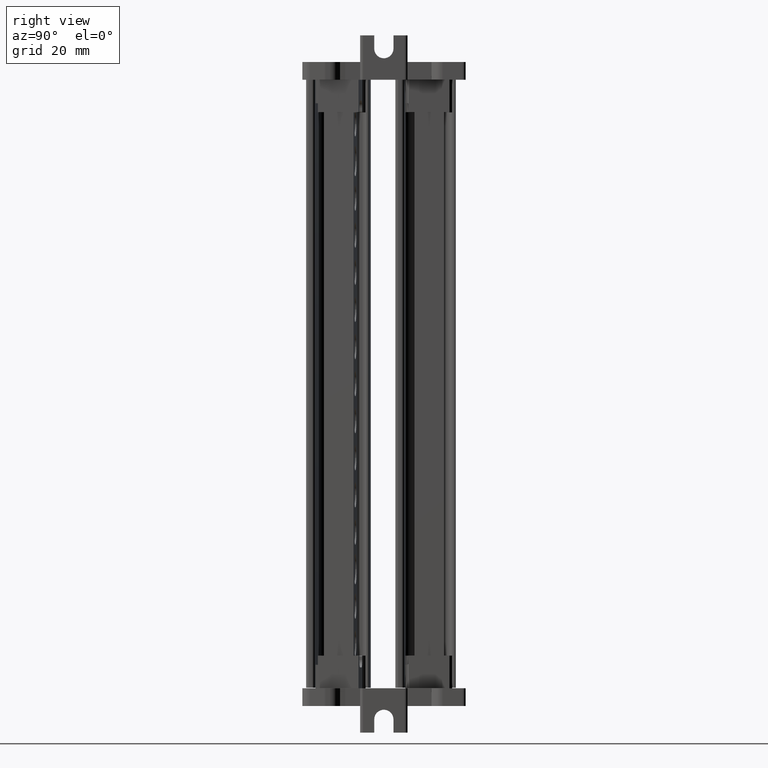
[diagram: clean part render]
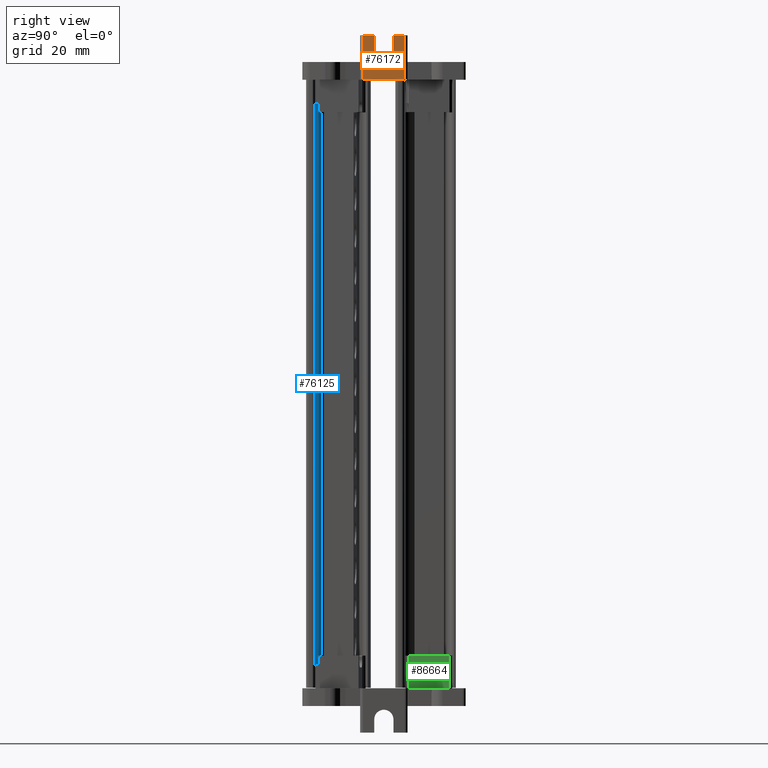
[diagram: same view with three faces highlighted in distinct colors, each labeled with its STEP entity id]
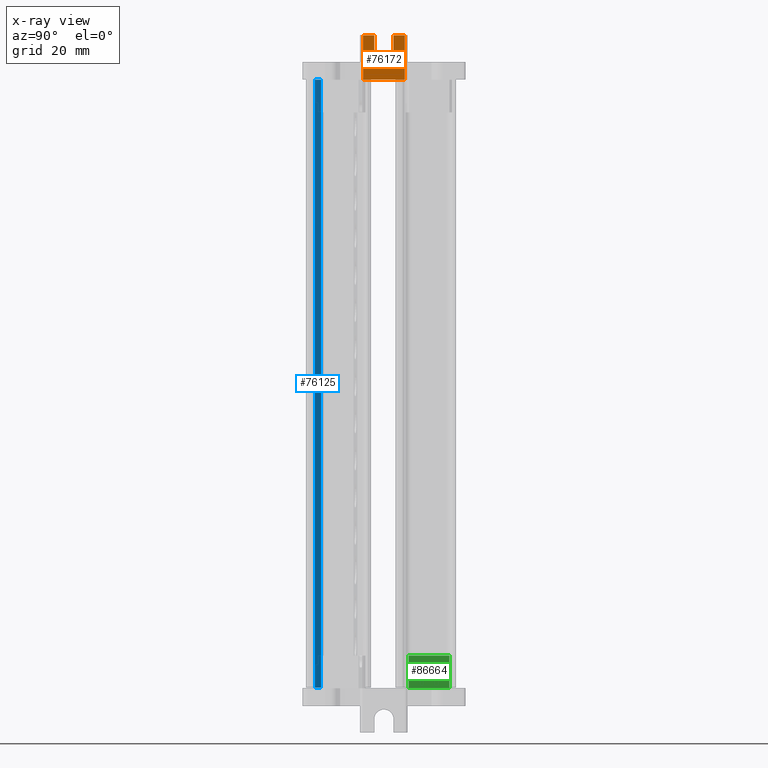
[diagram: x-ray of the same camera — body ghosted, the three highlighted faces saturated]
A machine part, right view with three faces highlighted in distinct colors.
The next image is the same camera in x-ray (body ghosted, the three faces saturated) — at least one of them is partly hidden behind the body in this view.
Their STEP definitions:

[orange] entity #76172 — the highlighted planar face has unit normal (-1, -0, 0).
#28673 = DIRECTION ( 'NONE',  ( 1.000000000000000000, 3.441691376337985300E-015, 0.0000000000000000000 ) ) ;
#28675 = CARTESIAN_POINT ( 'NONE',  ( 1916.332438672975500, 783.8773129364929000, 221.5014730974894200 ) ) ;
#28707 = DIRECTION ( 'NONE',  ( 0.0000000000000000000, -1.000000000000000000, 0.0000000000000000000 ) ) ;
#33661 = EDGE_CURVE ( 'NONE', #80618, #80579, #55450, .T. ) ;
#33675 = EDGE_CURVE ( 'NONE', #80597, #80585, #55399, .T. ) ;
#33685 = EDGE_CURVE ( 'NONE', #80524, #80618, #54448, .T. ) ;
#33763 = EDGE_CURVE ( 'NONE', #80576, #80597, #54670, .T. ) ;
#33765 = EDGE_CURVE ( 'NONE', #80585, #80560, #54795, .T. ) ;
#33810 = EDGE_CURVE ( 'NONE', #80579, #80525, #54912, .T. ) ;
#33879 = EDGE_CURVE ( 'NONE', #80560, #80524, #91017, .T. ) ;
#34477 = EDGE_CURVE ( 'NONE', #80525, #80576, #52796, .T. ) ;
#41433 = CARTESIAN_POINT ( 'NONE',  ( 1916.332438672975500, 790.8647591344192700, 211.0203038005998100 ) ) ;
#41463 = CARTESIAN_POINT ( 'NONE',  ( 1916.332438672975500, 787.1214843855300400, 221.5014730974894200 ) ) ;
#41545 = CARTESIAN_POINT ( 'NONE',  ( 1916.332438672975500, 776.8898667385669800, 225.9934027961556600 ) ) ;
#41558 = CARTESIAN_POINT ( 'NONE',  ( 1916.332438672975300, 780.6331414874558700, 225.9934027961556600 ) ) ;
#41593 = CARTESIAN_POINT ( 'NONE',  ( 1916.332438672975500, 790.8647591344192700, 225.9934027961556600 ) ) ;
#41618 = CARTESIAN_POINT ( 'NONE',  ( 1916.332438672975500, 776.8898667385669800, 211.0203038005998100 ) ) ;
#41621 = CARTESIAN_POINT ( 'NONE',  ( 1916.332438672975500, 780.6331414874558700, 221.5014730974894200 ) ) ;
#41649 = CARTESIAN_POINT ( 'NONE',  ( 1916.332438672975300, 787.1214843855301500, 225.9934027961556600 ) ) ;
#47578 = EDGE_LOOP ( 'NONE', ( #60446, #60426, #60476, #60256, #60328, #60430, #60262, #60250 ) ) ;
#52792 = CARTESIAN_POINT ( 'NONE',  ( 1916.332438672975500, 799.9770333218530100, 211.0203038005998100 ) ) ;
#52796 = LINE ( 'NONE', #52792, #89612 ) ;
#52867 = DIRECTION ( 'NONE',  ( -0.0000000000000000000, -1.000000000000000000, -0.0000000000000000000 ) ) ;
#54433 = DIRECTION ( 'NONE',  ( 0.0000000000000000000, 0.0000000000000000000, 1.000000000000000000 ) ) ;
#54448 = LINE ( 'NONE', #54490, #90974 ) ;
#54490 = CARTESIAN_POINT ( 'NONE',  ( 1916.332438672975500, 787.1214843855300400, 211.0203038005998100 ) ) ;
#54670 = LINE ( 'NONE', #54680, #91005 ) ;
#54680 = CARTESIAN_POINT ( 'NONE',  ( 1916.332438672975500, 776.8898667385669800, 211.0203038005998100 ) ) ;
#54684 = DIRECTION ( 'NONE',  ( 0.0000000000000000000, 0.0000000000000000000, 1.000000000000000000 ) ) ;
#54742 = DIRECTION ( 'NONE',  ( -0.0000000000000000000, -0.0000000000000000000, -1.000000000000000000 ) ) ;
#54753 = CARTESIAN_POINT ( 'NONE',  ( 1916.332438672975500, 780.6331414874558700, 211.0203038005998100 ) ) ;
#54795 = LINE ( 'NONE', #54753, #91003 ) ;
#54813 = DIRECTION ( 'NONE',  ( -0.0000000000000000000, -0.0000000000000000000, -1.000000000000000000 ) ) ;
#54912 = LINE ( 'NONE', #54914, #91023 ) ;
#54914 = CARTESIAN_POINT ( 'NONE',  ( 1916.332438672975500, 790.8647591344192700, 211.0203038005998100 ) ) ;
#55399 = LINE ( 'NONE', #55414, #90973 ) ;
#55403 = DIRECTION ( 'NONE',  ( -3.441691376337985300E-015, 1.000000000000000000, -0.0000000000000000000 ) ) ;
#55414 = CARTESIAN_POINT ( 'NONE',  ( 1916.332438672975500, 791.3599581919510200, 225.9934027961556600 ) ) ;
#55434 = DIRECTION ( 'NONE',  ( -3.441691376337985300E-015, 1.000000000000000000, -0.0000000000000000000 ) ) ;
#55450 = LINE ( 'NONE', #55479, #90972 ) ;
#55479 = CARTESIAN_POINT ( 'NONE',  ( 1916.332438672975500, 791.3599581919510200, 225.9934027961556600 ) ) ;
#59375 = CARTESIAN_POINT ( 'NONE',  ( 1916.332438672975500, 791.3599581919510200, 211.0203038005998100 ) ) ;
#59396 = DIRECTION ( 'NONE',  ( -1.000000000000000000, -3.441691376337985300E-015, 0.0000000000000000000 ) ) ;
#59399 = DIRECTION ( 'NONE',  ( 3.441691376337985300E-015, -1.000000000000000000, 0.0000000000000000000 ) ) ;
#59442 = PLANE ( 'NONE',  #65519 ) ;
#59447 = FACE_OUTER_BOUND ( 'NONE', #47578, .T. ) ;
#60250 = ORIENTED_EDGE ( 'NONE', *, *, #33661, .F. ) ;
#60256 = ORIENTED_EDGE ( 'NONE', *, *, #33675, .F. ) ;
#60262 = ORIENTED_EDGE ( 'NONE', *, *, #33810, .F. ) ;
#60328 = ORIENTED_EDGE ( 'NONE', *, *, #33763, .F. ) ;
#60426 = ORIENTED_EDGE ( 'NONE', *, *, #33879, .F. ) ;
#60430 = ORIENTED_EDGE ( 'NONE', *, *, #34477, .F. ) ;
#60446 = ORIENTED_EDGE ( 'NONE', *, *, #33685, .F. ) ;
#60476 = ORIENTED_EDGE ( 'NONE', *, *, #33765, .F. ) ;
#65519 = AXIS2_PLACEMENT_3D ( 'NONE', #59375, #59396, #59399 ) ;
#76172 = ADVANCED_FACE ( 'NONE', ( #59447 ), #59442, .F. ) ;
#80524 = VERTEX_POINT ( 'NONE', #41463 ) ;
#80525 = VERTEX_POINT ( 'NONE', #41433 ) ;
#80560 = VERTEX_POINT ( 'NONE', #41621 ) ;
#80576 = VERTEX_POINT ( 'NONE', #41618 ) ;
#80579 = VERTEX_POINT ( 'NONE', #41593 ) ;
#80585 = VERTEX_POINT ( 'NONE', #41558 ) ;
#80597 = VERTEX_POINT ( 'NONE', #41545 ) ;
#80618 = VERTEX_POINT ( 'NONE', #41649 ) ;
#89612 = VECTOR ( 'NONE', #52867, 1000.000000000000000 ) ;
#90972 = VECTOR ( 'NONE', #55403, 1000.000000000000000 ) ;
#90973 = VECTOR ( 'NONE', #55434, 1000.000000000000000 ) ;
#90974 = VECTOR ( 'NONE', #54433, 1000.000000000000000 ) ;
#91003 = VECTOR ( 'NONE', #54742, 1000.000000000000000 ) ;
#91005 = VECTOR ( 'NONE', #54684, 1000.000000000000000 ) ;
#91017 = CIRCLE ( 'NONE', #91074, 3.244171449037103200 ) ;
#91023 = VECTOR ( 'NONE', #54813, 1000.000000000000000 ) ;
#91074 = AXIS2_PLACEMENT_3D ( 'NONE', #28675, #28673, #28707 ) ;

[blue] entity #76125 — the highlighted planar face has unit normal (-0.1045, -0.9945, -0).
#1001 = DIRECTION ( 'NONE',  ( 1.515544296466684300E-010, 1.441952549265793800E-009, -1.000000000000000000 ) ) ;
#1025 = CARTESIAN_POINT ( 'NONE',  ( 1882.652508032793800, 762.7547819161757200, 106.6560282061103900 ) ) ;
#1038 = LINE ( 'NONE', #1025, #83029 ) ;
#1254 = CARTESIAN_POINT ( 'NONE',  ( 1882.652508032349000, 762.7547819162224400, 106.6560282061103900 ) ) ;
#1257 = CARTESIAN_POINT ( 'NONE',  ( 1882.652508032942000, 762.7547819161601400, 106.6560282061103900 ) ) ;
#1275 = DIRECTION ( 'NONE',  ( 1.515544296466684300E-010, 1.441952549265793800E-009, -1.000000000000000000 ) ) ;
#1284 = LINE ( 'NONE', #1257, #83041 ) ;
#1286 = DIRECTION ( 'NONE',  ( 1.515544296466684300E-010, 1.441952549265793800E-009, -1.000000000000000000 ) ) ;
#1294 = LINE ( 'NONE', #1254, #83002 ) ;
#1452 = LINE ( 'NONE', #1465, #83079 ) ;
#1457 = DIRECTION ( 'NONE',  ( 0.9945219592039813400, -0.1045278559096772300, 0.0000000000000000000 ) ) ;
#1465 = CARTESIAN_POINT ( 'NONE',  ( 1890.967631001513800, 761.8808325560750100, 6.170753984970758700 ) ) ;
#2531 = DIRECTION ( 'NONE',  ( 1.515544296466684300E-010, 1.441952549265793800E-009, -1.000000000000000000 ) ) ;
#2650 = LINE ( 'NONE', #2847, #83136 ) ;
#2847 = CARTESIAN_POINT ( 'NONE',  ( 1882.652508032187800, 762.7547819162394900, 106.6560282061103900 ) ) ;
#26360 = DIRECTION ( 'NONE',  ( 1.515544296466684300E-010, 1.441952549265793800E-009, -1.000000000000000000 ) ) ;
#26422 = LINE ( 'NONE', #26426, #83126 ) ;
#26426 = CARTESIAN_POINT ( 'NONE',  ( 1882.652508031346300, 762.7547819163279400, 106.6560282061103900 ) ) ;
#26680 = DIRECTION ( 'NONE',  ( -1.515544296466684300E-010, -1.441952549265793800E-009, 1.000000000000000000 ) ) ;
#26728 = CARTESIAN_POINT ( 'NONE',  ( 1902.720778242178100, 760.6455341138628200, 106.6560282061103900 ) ) ;
#26740 = LINE ( 'NONE', #26728, #83209 ) ;
#34311 = EDGE_CURVE ( 'NONE', #81516, #80606, #46263, .T. ) ;
#34383 = EDGE_CURVE ( 'NONE', #81601, #80606, #46399, .T. ) ;
#41568 = CARTESIAN_POINT ( 'NONE',  ( 1882.652508018487900, 762.7547817655289500, 211.0203038005997800 ) ) ;
#42555 = CARTESIAN_POINT ( 'NONE',  ( 1882.652508033221000, 762.7547819216656500, 91.27816808840262300 ) ) ;
#42591 = CARTESIAN_POINT ( 'NONE',  ( 1882.652508033103200, 762.7547819230059100, 88.54720315093300100 ) ) ;
#42609 = CARTESIAN_POINT ( 'NONE',  ( 1882.652508035118000, 762.7547819470962600, 38.56707596507672500 ) ) ;
#42635 = CARTESIAN_POINT ( 'NONE',  ( 1902.720778228944300, 760.6455339631031600, 211.0203038005998300 ) ) ;
#42636 = CARTESIAN_POINT ( 'NONE',  ( 1882.652508042595900, 762.7547820104299500, 41.29804090188641700 ) ) ;
#42712 = CARTESIAN_POINT ( 'NONE',  ( 1882.652508032045900, 762.7547819133399100, 108.6552333024460400 ) ) ;
#42724 = CARTESIAN_POINT ( 'NONE',  ( 1902.720778257406900, 760.6455342587579500, 6.170753986674961700 ) ) ;
#42730 = CARTESIAN_POINT ( 'NONE',  ( 1882.652508047756600, 762.7547820610986900, 6.170753984970786200 ) ) ;
#46263 = LINE ( 'NONE', #46264, #89596 ) ;
#46264 = CARTESIAN_POINT ( 'NONE',  ( 1902.720778228944300, 760.6455339631031600, 211.0203038005998100 ) ) ;
#46266 = DIRECTION ( 'NONE',  ( -0.9945219592039812300, 0.1045278559096781800, 0.0000000000000000000 ) ) ;
#46388 = DIRECTION ( 'NONE',  ( -1.263344702348296700E-010, -1.444603258241151800E-009, 1.000000000000000000 ) ) ;
#46399 = LINE ( 'NONE', #46431, #89548 ) ;
#46431 = CARTESIAN_POINT ( 'NONE',  ( 1882.652508032298600, 762.7547819162280100, 106.6560282063225700 ) ) ;
#47560 = EDGE_LOOP ( 'NONE', ( #56769, #56881, #56856, #56864, #56938, #56833, #56914, #56868, #56804 ) ) ;
#56769 = ORIENTED_EDGE ( 'NONE', *, *, #78066, .F. ) ;
#56804 = ORIENTED_EDGE ( 'NONE', *, *, #34311, .F. ) ;
#56833 = ORIENTED_EDGE ( 'NONE', *, *, #77805, .F. ) ;
#56856 = ORIENTED_EDGE ( 'NONE', *, *, #78007, .F. ) ;
#56864 = ORIENTED_EDGE ( 'NONE', *, *, #77879, .F. ) ;
#56868 = ORIENTED_EDGE ( 'NONE', *, *, #34383, .T. ) ;
#56881 = ORIENTED_EDGE ( 'NONE', *, *, #77962, .F. ) ;
#56914 = ORIENTED_EDGE ( 'NONE', *, *, #77876, .F. ) ;
#56938 = ORIENTED_EDGE ( 'NONE', *, *, #77982, .F. ) ;
#62420 = DIRECTION ( 'NONE',  ( -0.1045278559096772400, -0.9945219592039814500, -1.449895133959573500E-009 ) ) ;
#62436 = FACE_OUTER_BOUND ( 'NONE', #47560, .T. ) ;
#62448 = CARTESIAN_POINT ( 'NONE',  ( 1890.967630986284800, 761.8808324111799900, 106.6560282061103900 ) ) ;
#62456 = PLANE ( 'NONE',  #65426 ) ;
#62457 = DIRECTION ( 'NONE',  ( 0.9945219592039813400, -0.1045278559096772300, 0.0000000000000000000 ) ) ;
#65426 = AXIS2_PLACEMENT_3D ( 'NONE', #62448, #62420, #62457 ) ;
#76125 = ADVANCED_FACE ( 'NONE', ( #62436 ), #62456, .F. ) ;
#77805 = EDGE_CURVE ( 'NONE', #81450, #81464, #1038, .T. ) ;
#77876 = EDGE_CURVE ( 'NONE', #81601, #81450, #1294, .T. ) ;
#77879 = EDGE_CURVE ( 'NONE', #81507, #81473, #1284, .T. ) ;
#77962 = EDGE_CURVE ( 'NONE', #81586, #81566, #1452, .T. ) ;
#77982 = EDGE_CURVE ( 'NONE', #81464, #81507, #2650, .T. ) ;
#78007 = EDGE_CURVE ( 'NONE', #81473, #81586, #26422, .T. ) ;
#78066 = EDGE_CURVE ( 'NONE', #81566, #81516, #26740, .T. ) ;
#80606 = VERTEX_POINT ( 'NONE', #41568 ) ;
#81450 = VERTEX_POINT ( 'NONE', #42555 ) ;
#81464 = VERTEX_POINT ( 'NONE', #42591 ) ;
#81473 = VERTEX_POINT ( 'NONE', #42609 ) ;
#81507 = VERTEX_POINT ( 'NONE', #42636 ) ;
#81516 = VERTEX_POINT ( 'NONE', #42635 ) ;
#81566 = VERTEX_POINT ( 'NONE', #42724 ) ;
#81586 = VERTEX_POINT ( 'NONE', #42730 ) ;
#81601 = VERTEX_POINT ( 'NONE', #42712 ) ;
#83002 = VECTOR ( 'NONE', #1275, 1000.000000000000000 ) ;
#83029 = VECTOR ( 'NONE', #1001, 1000.000000000000000 ) ;
#83041 = VECTOR ( 'NONE', #1286, 1000.000000000000000 ) ;
#83079 = VECTOR ( 'NONE', #1457, 1000.000000000000100 ) ;
#83126 = VECTOR ( 'NONE', #26360, 1000.000000000000000 ) ;
#83136 = VECTOR ( 'NONE', #2531, 1000.000000000000000 ) ;
#83209 = VECTOR ( 'NONE', #26680, 1000.000000000000000 ) ;
#89548 = VECTOR ( 'NONE', #46388, 1000.000000000000000 ) ;
#89596 = VECTOR ( 'NONE', #46266, 1000.000000000000100 ) ;

[green] entity #86664 — the highlighted planar face has unit normal (-1, -0, 0).
#9089 = VECTOR ( 'NONE', #21488, 1000.000000000000000 ) ;
#17705 = CARTESIAN_POINT ( 'NONE',  ( 1896.502053610040100, 792.2455367072585700, 17.00700537857020200 ) ) ;
#17744 = CARTESIAN_POINT ( 'NONE',  ( 1896.502053610039900, 805.9708774531842400, 17.00700537857020200 ) ) ;
#21426 = LINE ( 'NONE', #21487, #9089 ) ;
#21487 = CARTESIAN_POINT ( 'NONE',  ( 1896.502053610040100, 792.2455367072582200, 17.00700537857020200 ) ) ;
#21488 = DIRECTION ( 'NONE',  ( -1.564194439419690300E-014, 1.000000000000000000, -0.0000000000000000000 ) ) ;
#34585 = EDGE_CURVE ( 'NONE', #52237, #80963, #53287, .T. ) ;
#34624 = EDGE_CURVE ( 'NONE', #81057, #80963, #53341, .T. ) ;
#34676 = EDGE_CURVE ( 'NONE', #52231, #81057, #52537, .T. ) ;
#39228 = ORIENTED_EDGE ( 'NONE', *, *, #34676, .F. ) ;
#39232 = ORIENTED_EDGE ( 'NONE', *, *, #34624, .F. ) ;
#39246 = ORIENTED_EDGE ( 'NONE', *, *, #34585, .T. ) ;
#39262 = ORIENTED_EDGE ( 'NONE', *, *, #51213, .F. ) ;
#41678 = CARTESIAN_POINT ( 'NONE',  ( 1896.502053610039900, 792.2455367072584500, 5.998782997044410000 ) ) ;
#41908 = CARTESIAN_POINT ( 'NONE',  ( 1896.502053610039900, 805.9708774531841300, 5.998782997044410000 ) ) ;
#47377 = EDGE_LOOP ( 'NONE', ( #39228, #39262, #39246, #39232 ) ) ;
#51213 = EDGE_CURVE ( 'NONE', #52237, #52231, #21426, .T. ) ;
#52231 = VERTEX_POINT ( 'NONE', #17744 ) ;
#52237 = VERTEX_POINT ( 'NONE', #17705 ) ;
#52475 = CARTESIAN_POINT ( 'NONE',  ( 1896.502053610039900, 805.9708774531842400, 17.00700537857020200 ) ) ;
#52503 = DIRECTION ( 'NONE',  ( -5.407006237465800700E-016, -8.457609090551586800E-030, -1.000000000000000000 ) ) ;
#52537 = LINE ( 'NONE', #52475, #89877 ) ;
#53242 = DIRECTION ( 'NONE',  ( 5.708190420621748200E-029, -3.649284434702033000E-015, -1.000000000000000000 ) ) ;
#53283 = CARTESIAN_POINT ( 'NONE',  ( 1896.502053610040100, 792.2455367072585700, 17.00700537857020200 ) ) ;
#53287 = LINE ( 'NONE', #53283, #89687 ) ;
#53341 = LINE ( 'NONE', #53390, #89775 ) ;
#53390 = CARTESIAN_POINT ( 'NONE',  ( 1896.502053610039900, 799.9770333218530100, 5.998782997044410000 ) ) ;
#53415 = DIRECTION ( 'NONE',  ( 0.0000000000000000000, -1.000000000000000000, -0.0000000000000000000 ) ) ;
#62236 = AXIS2_PLACEMENT_3D ( 'NONE', #70361, #70439, #70453 ) ;
#70361 = CARTESIAN_POINT ( 'NONE',  ( 1896.502053610040100, 792.2455367072582200, 17.00700537857020200 ) ) ;
#70407 = FACE_OUTER_BOUND ( 'NONE', #47377, .T. ) ;
#70439 = DIRECTION ( 'NONE',  ( -1.000000000000000000, -1.564194439419690300E-014, 5.407006237465800700E-016 ) ) ;
#70446 = PLANE ( 'NONE',  #62236 ) ;
#70453 = DIRECTION ( 'NONE',  ( 1.564194439419690300E-014, -1.000000000000000000, 0.0000000000000000000 ) ) ;
#80963 = VERTEX_POINT ( 'NONE', #41678 ) ;
#81057 = VERTEX_POINT ( 'NONE', #41908 ) ;
#86664 = ADVANCED_FACE ( 'NONE', ( #70407 ), #70446, .F. ) ;
#89687 = VECTOR ( 'NONE', #53242, 1000.000000000000000 ) ;
#89775 = VECTOR ( 'NONE', #53415, 1000.000000000000000 ) ;
#89877 = VECTOR ( 'NONE', #52503, 1000.000000000000000 ) ;